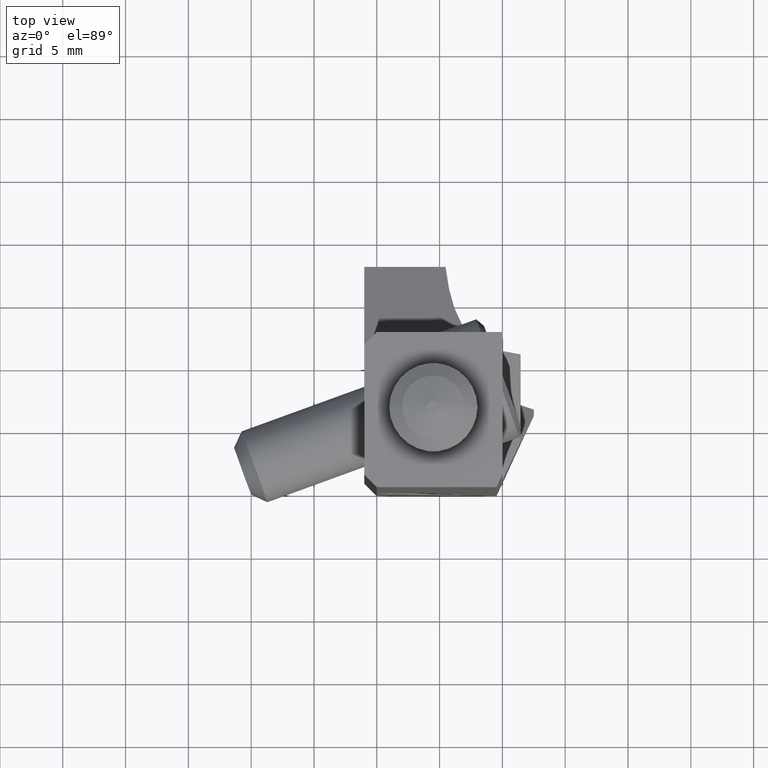
[diagram: clean part render]
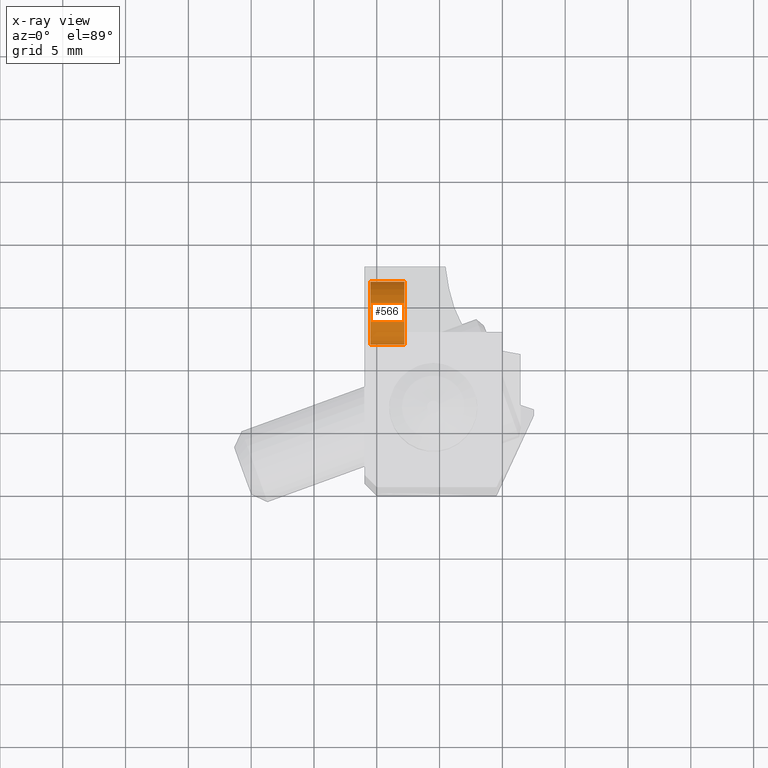
[diagram: x-ray — body ghosted, one internal face saturated and labeled with its STEP entity id]
A machine part, top view, then the same camera in x-ray: the body is ghosted and one INTERNAL B-rep face — a face not visible from any outside direction — is saturated and labeled: STEP entity #566.
In plain terms, the highlighted cylindrical surface (edge-blend (fillet) strip) has radius 2.5 mm, axis along (1, 0, 0).
Its self-contained STEP definition (entity closure, byte-faithful):
#199=CYLINDRICAL_SURFACE('',#4607,2.5);
#355=CIRCLE('',#4604,2.5);
#356=CIRCLE('',#4606,2.5);
#566=ADVANCED_FACE('',(#889),#199,.T.);
#889=FACE_OUTER_BOUND('',#1114,.T.);
#1114=EDGE_LOOP('',(#2262,#2263,#2264,#2265));
#2262=ORIENTED_EDGE('',*,*,#3312,.T.);
#2263=ORIENTED_EDGE('',*,*,#3311,.F.);
#2264=ORIENTED_EDGE('',*,*,#3313,.T.);
#2265=ORIENTED_EDGE('',*,*,#3314,.T.);
#2741=VERTEX_POINT('',#7596);
#2743=VERTEX_POINT('',#7600);
#2744=VERTEX_POINT('',#7606);
#2745=VERTEX_POINT('',#7608);
#3311=EDGE_CURVE('',#2743,#2741,#355,.T.);
#3312=EDGE_CURVE('',#2744,#2741,#3687,.T.);
#3313=EDGE_CURVE('',#2743,#2745,#3688,.T.);
#3314=EDGE_CURVE('',#2745,#2744,#356,.T.);
#3687=LINE('',#7605,#4040);
#3688=LINE('',#7607,#4041);
#4040=VECTOR('',#5761,1.);
#4041=VECTOR('',#5762,1.);
#4604=AXIS2_PLACEMENT_3D('',#7603,#5757,#5758);
#4606=AXIS2_PLACEMENT_3D('',#7609,#5763,#5764);
#4607=AXIS2_PLACEMENT_3D('',#7610,#5765,#5766);
#5757=DIRECTION('',(-1.,0.,0.));
#5758=DIRECTION('',(0.,-1.,0.));
#5761=DIRECTION('',(-1.,0.,4.639580900524E-12));
#5762=DIRECTION('',(1.,1.052655904827E-14,-1.992677627837E-11));
#5763=DIRECTION('',(-1.,0.,0.));
#5764=DIRECTION('',(0.,-1.,0.));
#5765=DIRECTION('',(1.,0.,0.));
#5766=DIRECTION('',(0.,1.,0.));
#7596=CARTESIAN_POINT('',(-10.5,17.,-37.60049189985));
#7600=CARTESIAN_POINT('',(-10.5,12.,-37.60049190001));
#7603=CARTESIAN_POINT('',(-10.5,14.5,-37.60049189996));
#7605=CARTESIAN_POINT('',(-7.799999999997,17.,-37.60049189986));
#7606=CARTESIAN_POINT('',(-7.8,17.,-37.60049189996));
#7607=CARTESIAN_POINT('',(-10.5,12.,-37.60049190001));
#7608=CARTESIAN_POINT('',(-7.8,12.,-37.60049189996));
#7609=CARTESIAN_POINT('',(-7.8,14.5,-37.60049189996));
#7610=CARTESIAN_POINT('',(-10.554,14.5,-37.60049189996));